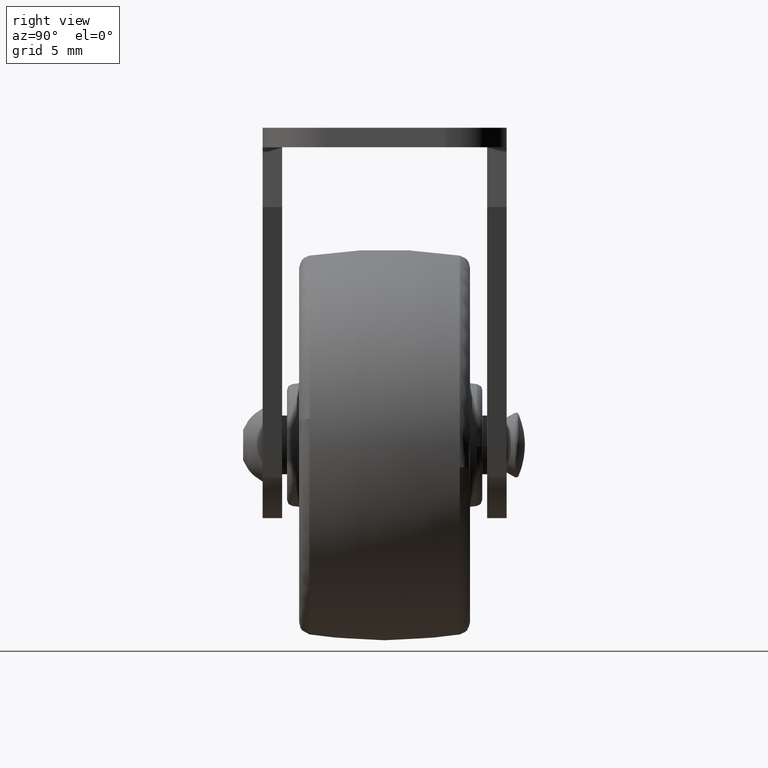
[diagram: clean part render]
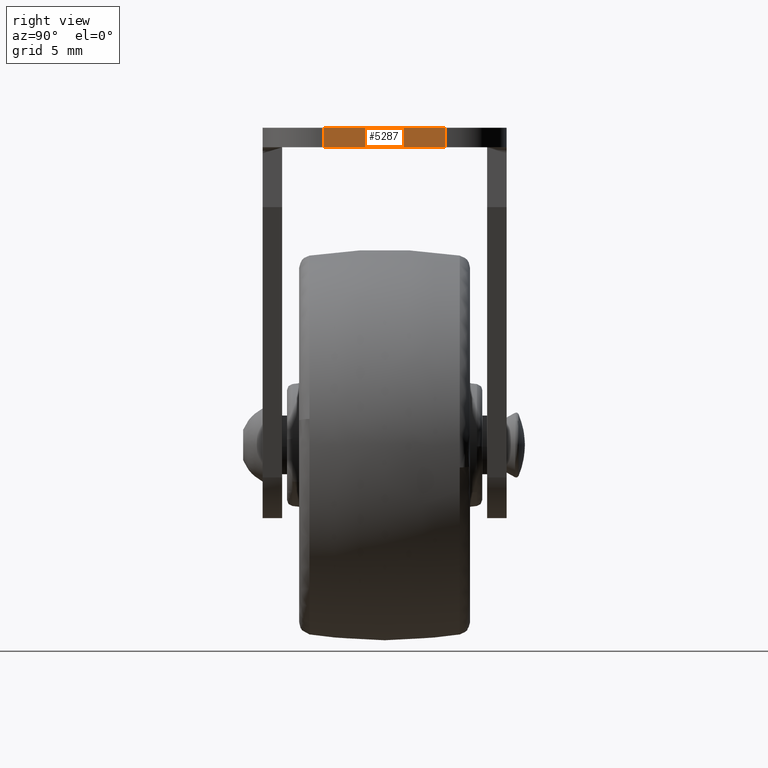
[diagram: same view with one face highlighted and labeled with its STEP entity id]
A machine part, right view. The second image highlights one B-rep face of the part: STEP entity #5287.
In plain terms, the highlighted face is a freeform B-spline surface patch.
Its self-contained STEP definition (entity closure, byte-faithful):
#5032=CARTESIAN_POINT('',(17.999999999998099,-5.000004363323220,26.0));
#5033=VERTEX_POINT('',#5032);
#5047=CARTESIAN_POINT('',(18.0,4.999999999999920,26.0));
#5048=VERTEX_POINT('',#5047);
#5049=CARTESIAN_POINT('',(17.999999999998099,-5.000004363323220,26.0));
#5050=CARTESIAN_POINT('',(18.0,4.999999999999920,26.0));
#5051=QUASI_UNIFORM_CURVE('',1,(#5049,#5050),.UNSPECIFIED.,.F.,.U.);
#5052=EDGE_CURVE('',#5033,#5048,#5051,.T.);
#5123=CARTESIAN_POINT('',(18.0,4.999999999999920,24.400000999999950));
#5124=VERTEX_POINT('',#5123);
#5138=CARTESIAN_POINT('',(17.999999999998099,-5.000004363323220,24.400000999999950));
#5139=VERTEX_POINT('',#5138);
#5140=CARTESIAN_POINT('',(17.999999999998099,-5.000004363323220,24.400000999999950));
#5141=CARTESIAN_POINT('',(18.0,4.999999999999920,24.400000999999950));
#5142=QUASI_UNIFORM_CURVE('',1,(#5140,#5141),.UNSPECIFIED.,.F.,.U.);
#5143=EDGE_CURVE('',#5139,#5124,#5142,.T.);
#5262=CARTESIAN_POINT('',(18.0,4.999999999999920,24.400000999999950));
#5263=CARTESIAN_POINT('',(18.0,4.999999999999920,26.0));
#5264=QUASI_UNIFORM_CURVE('',1,(#5262,#5263),.UNSPECIFIED.,.F.,.U.);
#5265=EDGE_CURVE('',#5124,#5048,#5264,.T.);
#5272=CARTESIAN_POINT('',(18.0,-5.499504561889264,26.079919918367299));
#5273=CARTESIAN_POINT('',(18.0,-5.499504561889264,24.320081610921569));
#5274=CARTESIAN_POINT('',(18.0,5.499500466786980,26.079919918367299));
#5275=CARTESIAN_POINT('',(18.0,5.499500466786980,24.320081610921569));
#5276=B_SPLINE_SURFACE_WITH_KNOTS('',1,1,((#5272,#5274),(#5273,#5275)),.UNSPECIFIED.,.F.,.F.,.U.,(2,2),(2,2),(0.041708349834755,0.958291374493763),(0.0,10.999005028676240),.UNSPECIFIED.);
#5277=ORIENTED_EDGE('',*,*,#5052,.F.);
#5278=CARTESIAN_POINT('',(17.999999999998099,-5.000004363323220,24.400000999999950));
#5279=CARTESIAN_POINT('',(17.999999999998099,-5.000004363323220,26.0));
#5280=QUASI_UNIFORM_CURVE('',1,(#5278,#5279),.UNSPECIFIED.,.F.,.U.);
#5281=EDGE_CURVE('',#5139,#5033,#5280,.T.);
#5282=ORIENTED_EDGE('',*,*,#5281,.F.);
#5283=ORIENTED_EDGE('',*,*,#5143,.T.);
#5284=ORIENTED_EDGE('',*,*,#5265,.T.);
#5285=EDGE_LOOP('',(#5277,#5282,#5283,#5284));
#5286=FACE_OUTER_BOUND('',#5285,.T.);
#5287=ADVANCED_FACE('',(#5286),#5276,.T.);